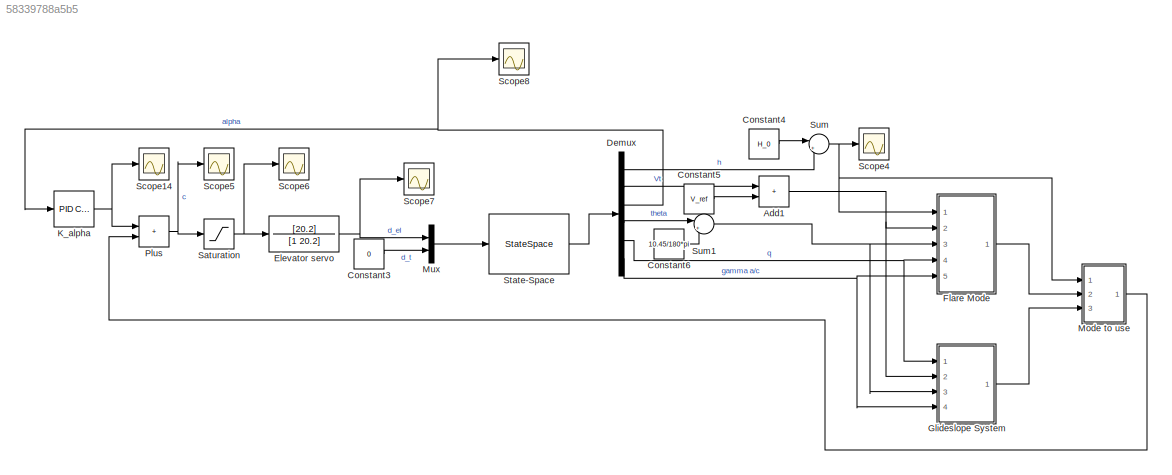
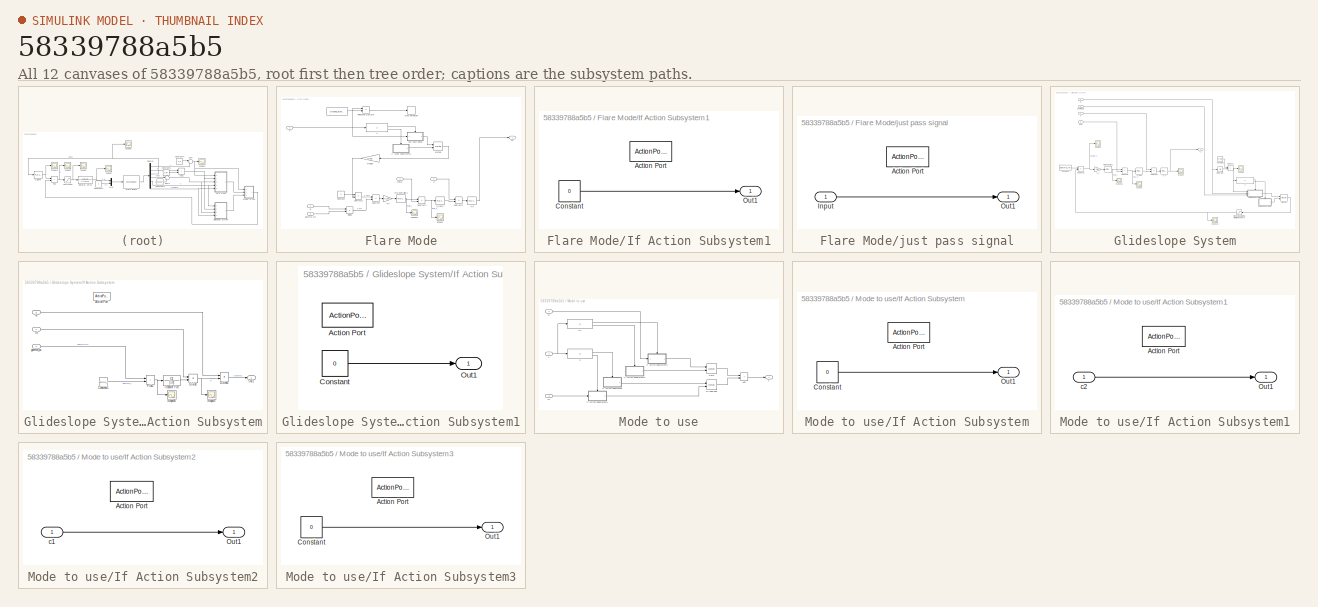
[diagram: thumbnail index - all 12 canvases of the model, root first then tree order]
MODEL slx_58339788a5b5
KIND model
CONFIG AbsTol = auto
CONFIG EnableMultiTasking = off
CONFIG FixedStep = auto
CONFIG MaxStep = auto
CONFIG MinStep = auto
CONFIG RelTol = 1e-3
CONFIG SampleTimeConstraint = Unconstrained
CONFIG Solver = VariableStepAuto
CONFIG SolverName = VariableStepAuto
CONFIG StartTime = 0.0
CONFIG StopTime = 10000
BLOCK [Sum] Add1
  IconShape = rectangular
  Ports = [2, 1]
BLOCK [Constant] Constant3
  Value = 0
BLOCK [Constant] Constant4
  Value = H_0
BLOCK [Constant] Constant5
  Value = V_ref
BLOCK [Constant] Constant6
  Value = 10.45/180*pi
BLOCK [Demux] Demux
  Outputs = 6
  Ports = [1, 6]
BLOCK [TransferFcn] Elevator servo
  Denominator = [1 20.2]
  Numerator = [20.2]
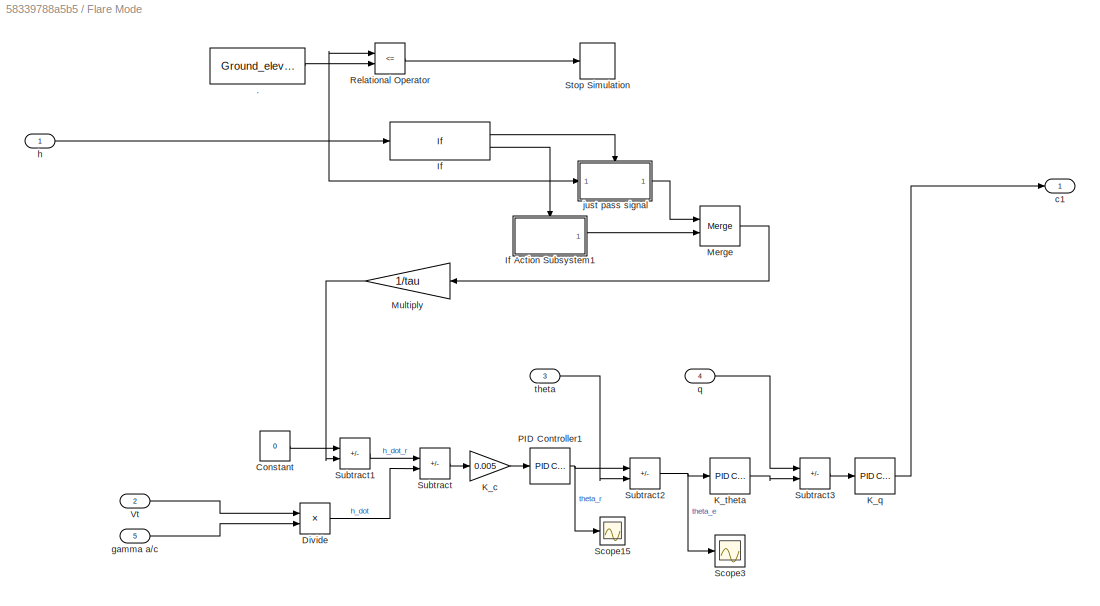
BLOCK [SubSystem] Flare Mode
  Ports = [5, 1]
  RequestExecContextInheritance = off
BLOCK [Constant] Flare Mode/.
  Value = Ground_elevation
BLOCK [Constant] Flare Mode/Constant
  Value = 0
BLOCK [Product] Flare Mode/Divide
  Inputs = **
  Ports = [2, 1]
BLOCK [If] Flare Mode/If
  IfExpression = u1 <= H_flare
  Ports = [1, 2]
BLOCK [SubSystem] Flare Mode/If Action Subsystem1
  Ports = [0, 1, 0, 0, 0, 0, 0, 1]
  RequestExecContextInheritance = off
  TreatAsAtomicUnit = on
BLOCK [ActionPort] Flare Mode/If Action Subsystem1/Action Port
  ActionPortLabel = else
BLOCK [Constant] Flare Mode/If Action Subsystem1/Constant
  Value = 0
BLOCK [Outport] Flare Mode/If Action Subsystem1/Out1
BLOCK [Gain] Flare Mode/K_c
  Gain = 0.005
BLOCK [Reference] Flare Mode/K_q  REF=simulink/Continuous/PID Controller
  Ports = [1, 1]
  SourceBlock = simulink/Continuous/PID Controller
  SourceProductBaseCode = SL
  SourceType = PID 1dof
BLOCK [Reference] Flare Mode/K_theta  REF=simulink/Continuous/PID Controller
  Ports = [1, 1]
  SourceBlock = simulink/Continuous/PID Controller
  SourceProductBaseCode = SL
  SourceType = PID 1dof
BLOCK [Merge] Flare Mode/Merge
  Ports = [2, 1]
BLOCK [Gain] Flare Mode/Multiply
  Gain = 1/tau
BLOCK [Reference] Flare Mode/PID Controller1  REF=simulink/Continuous/PID Controller
  Ports = [1, 1]
  SourceBlock = simulink/Continuous/PID Controller
  SourceProductBaseCode = SL
  SourceType = PID 1dof
BLOCK [RelationalOperator] Flare Mode/Relational Operator
  InputSameDT = off
  Operator = <=
  OutDataTypeStr = boolean
  Ports = [2, 1]
  RndMeth = Simplest
BLOCK [Scope] Flare Mode/Scope15
  Floating = off
  NumInputPorts = 1
  Ports = [1]
  ScopeSpecificationString = Simulink.scopes.TimeScopeBlockCfg('CurrentConfiguration', extmgr.ConfigurationSet(extmgr.Configuration('Core','General UI',true),extmgr.Configuration('Core','Source UI',true),extmgr.Configuration('Sources','WiredSimulink',true,'DataLoggingVariableName','ScopeData1'),extmgr.Configuration('Visuals','Time Domain',true,'SerializedDisplays',{struct('MinYLimReal','-0.10228','MaxYLimReal','0.85007','YLab...<+1366ch>
BLOCK [Scope] Flare Mode/Scope3
  Floating = off
  NumInputPorts = 1
  Ports = [1]
  ScopeSpecificationString = Simulink.scopes.TimeScopeBlockCfg('CurrentConfiguration', extmgr.ConfigurationSet(extmgr.Configuration('Core','General UI',true),extmgr.Configuration('Core','Source UI',true),extmgr.Configuration('Sources','WiredSimulink',true,'DataLoggingVariableName','ScopeData3'),extmgr.Configuration('Visuals','Time Domain',true,'SerializedDisplays',{struct('MinYLimReal','-12545529112428.87305','MaxYLimReal','7...<+1501ch>
BLOCK [Stop] Flare Mode/Stop Simulation
BLOCK [Sum] Flare Mode/Subtract
  IconShape = rectangular
  Inputs = +-
  Ports = [2, 1]
BLOCK [Sum] Flare Mode/Subtract1
  IconShape = rectangular
  Inputs = +-
  Ports = [2, 1]
BLOCK [Sum] Flare Mode/Subtract2
  IconShape = rectangular
  Inputs = +-
  Ports = [2, 1]
BLOCK [Sum] Flare Mode/Subtract3
  IconShape = rectangular
  Inputs = -+
  Ports = [2, 1]
BLOCK [Inport] Flare Mode/Vt
  Port = 2
BLOCK [Outport] Flare Mode/c1
BLOCK [Inport] Flare Mode/gamma a//c
  Port = 5
BLOCK [Inport] Flare Mode/h
BLOCK [SubSystem] Flare Mode/just pass signal
  Ports = [1, 1, 0, 0, 0, 0, 0, 1]
  RequestExecContextInheritance = off
  TreatAsAtomicUnit = on
BLOCK [ActionPort] Flare Mode/just pass signal/Action Port
  ActionPortLabel = if(u1 <= H_flare)
BLOCK [Inport] Flare Mode/just pass signal/Input
BLOCK [Outport] Flare Mode/just pass signal/Out1
BLOCK [Inport] Flare Mode/q
  Port = 4
BLOCK [Inport] Flare Mode/theta
  Port = 3
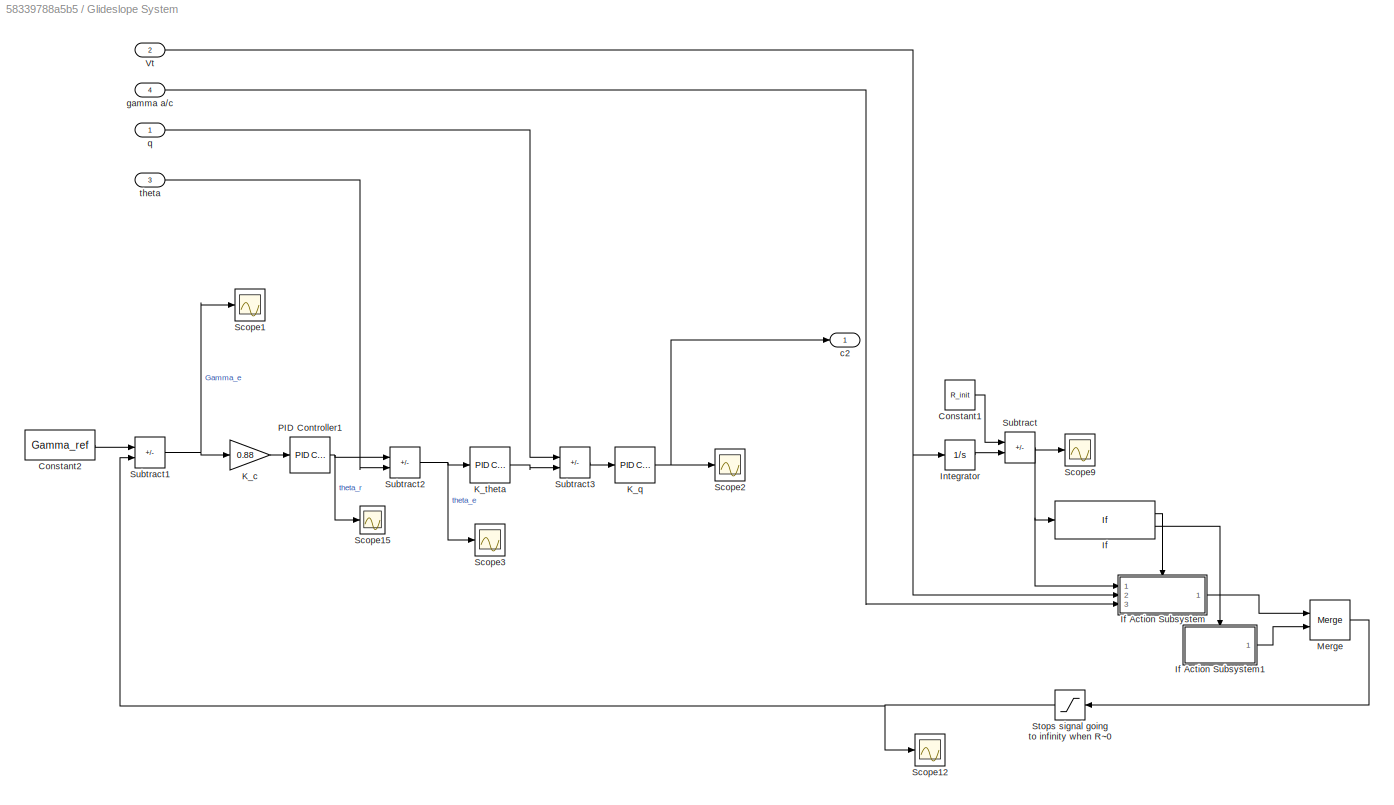
BLOCK [SubSystem] Glideslope System
  Ports = [4, 1]
  RequestExecContextInheritance = off
BLOCK [Constant] Glideslope System/Constant1
  Value = R_init
BLOCK [Constant] Glideslope System/Constant2
  Value = Gamma_ref
BLOCK [If] Glideslope System/If
  IfExpression = u1 <= 38215
  Ports = [1, 2]
BLOCK [SubSystem] Glideslope System/If Action Subsystem
  Ports = [3, 1, 0, 0, 0, 0, 0, 1]
  RequestExecContextInheritance = off
  TreatAsAtomicUnit = on
BLOCK [ActionPort] Glideslope System/If Action Subsystem/Action Port
  ActionPortLabel = if(u1 <= 38215)
BLOCK [Constant] Glideslope System/If Action Subsystem/Constant1
  Value = gamma_r
BLOCK [Product] Glideslope System/If Action Subsystem/Divide
  Inputs = **
  Ports = [2, 1]
BLOCK [Product] Glideslope System/If Action Subsystem/Divide1
  Inputs = /*
  Ports = [2, 1]
BLOCK [Outport] Glideslope System/If Action Subsystem/Out1
BLOCK [Sum] Glideslope System/If Action Subsystem/Plus1
  IconShape = rectangular
  Ports = [2, 1]
BLOCK [Inport] Glideslope System/If Action Subsystem/R
BLOCK [Scope] Glideslope System/If Action Subsystem/Scope16
  Floating = off
  NumInputPorts = 1
  Ports = [1]
  ScopeSpecificationString = Simulink.scopes.TimeScopeBlockCfg('CurrentConfiguration', extmgr.ConfigurationSet(extmgr.Configuration('Core','General UI',true),extmgr.Configuration('Core','Source UI',true),extmgr.Configuration('Sources','WiredSimulink',true,'DataLoggingVariableName','ScopeData1'),extmgr.Configuration('Visuals','Time Domain',true,'SerializedDisplays',{struct('MinYLimReal','0.00671','MaxYLimReal','0.07098','YLabe...<+1362ch>
BLOCK [Scope] Glideslope System/If Action Subsystem/Scope17
  Floating = off
  NumInputPorts = 1
  Ports = [1]
  ScopeSpecificationString = Simulink.scopes.TimeScopeBlockCfg('CurrentConfiguration', extmgr.ConfigurationSet(extmgr.Configuration('Core','General UI',true),extmgr.Configuration('Core','Source UI',true),extmgr.Configuration('Sources','WiredSimulink',true,'DataLoggingVariableName','ScopeData2'),extmgr.Configuration('Visuals','Time Domain',true,'SerializedDisplays',{struct('MinYLimReal','-1942.16536','MaxYLimReal','17479.48822...<+1432ch>
BLOCK [TransferFcn] Glideslope System/If Action Subsystem/Transfer Fcn
  Denominator = [1 0]
BLOCK [Inport] Glideslope System/If Action Subsystem/Vt
  Port = 2
BLOCK [Inport] Glideslope System/If Action Subsystem/gamma_ac
  Port = 3
BLOCK [SubSystem] Glideslope System/If Action Subsystem1
  Ports = [0, 1, 0, 0, 0, 0, 0, 1]
  RequestExecContextInheritance = off
  TreatAsAtomicUnit = on
BLOCK [ActionPort] Glideslope System/If Action Subsystem1/Action Port
  ActionPortLabel = else
BLOCK [Constant] Glideslope System/If Action Subsystem1/Constant
  Value = 0
BLOCK [Outport] Glideslope System/If Action Subsystem1/Out1
BLOCK [Integrator] Glideslope System/Integrator
  Ports = [1, 1]
BLOCK [Gain] Glideslope System/K_c
  Gain = 0.88
BLOCK [Reference] Glideslope System/K_q  REF=simulink/Continuous/PID Controller
  Ports = [1, 1]
  SourceBlock = simulink/Continuous/PID Controller
  SourceProductBaseCode = SL
  SourceType = PID 1dof
BLOCK [Reference] Glideslope System/K_theta  REF=simulink/Continuous/PID Controller
  Ports = [1, 1]
  SourceBlock = simulink/Continuous/PID Controller
  SourceProductBaseCode = SL
  SourceType = PID 1dof
BLOCK [Merge] Glideslope System/Merge
  Ports = [2, 1]
BLOCK [Reference] Glideslope System/PID Controller1  REF=simulink/Continuous/PID Controller
  Ports = [1, 1]
  SourceBlock = simulink/Continuous/PID Controller
  SourceProductBaseCode = SL
  SourceType = PID 1dof
BLOCK [Scope] Glideslope System/Scope1
  Floating = off
  NumInputPorts = 1
  Ports = [1]
  ScopeSpecificationString = Simulink.scopes.TimeScopeBlockCfg('CurrentConfiguration', extmgr.ConfigurationSet(extmgr.Configuration('Core','General UI',true),extmgr.Configuration('Core','Source UI',true),extmgr.Configuration('Sources','WiredSimulink',true,'DataLoggingVariableName','ScopeData1'),extmgr.Configuration('Visuals','Time Domain',true,'SerializedDisplays',{struct('MinYLimReal','-0.10034','MaxYLimReal','0.08948','YLab...<+1443ch>
BLOCK [Scope] Glideslope System/Scope12
  Floating = off
  NumInputPorts = 1
  Ports = [1]
  ScopeSpecificationString = Simulink.scopes.TimeScopeBlockCfg('CurrentConfiguration', extmgr.ConfigurationSet(extmgr.Configuration('Core','General UI',true),extmgr.Configuration('Core','Source UI',true),extmgr.Configuration('Sources','WiredSimulink',true,'DataLoggingVariableName','ScopeData1'),extmgr.Configuration('Visuals','Time Domain',true,'SerializedDisplays',{struct('MinYLimReal','-0.39198','MaxYLimReal','0.5','YLabelRe...<+1459ch>
BLOCK [Scope] Glideslope System/Scope15
  Floating = off
  NumInputPorts = 1
  Ports = [1]
  ScopeSpecificationString = Simulink.scopes.TimeScopeBlockCfg('CurrentConfiguration', extmgr.ConfigurationSet(extmgr.Configuration('Core','General UI',true),extmgr.Configuration('Core','Source UI',true),extmgr.Configuration('Sources','WiredSimulink',true,'DataLoggingVariableName','ScopeData4'),extmgr.Configuration('Visuals','Time Domain',true,'SerializedDisplays',{struct('MinYLimReal','-3.49717','MaxYLimReal','13.34106','YLa...<+1401ch>
BLOCK [Scope] Glideslope System/Scope2
  Floating = off
  NumInputPorts = 1
  Ports = [1]
  ScopeSpecificationString = Simulink.scopes.TimeScopeBlockCfg('CurrentConfiguration', extmgr.ConfigurationSet(extmgr.Configuration('Core','General UI',true),extmgr.Configuration('Core','Source UI',true),extmgr.Configuration('Sources','WiredSimulink',true,'DataLoggingVariableName','ScopeData1'),extmgr.Configuration('Visuals','Time Domain',true,'SerializedDisplays',{struct('MinYLimReal','-0.0738','MaxYLimReal','0.86609','YLabe...<+1438ch>
BLOCK [Scope] Glideslope System/Scope3
  Floating = off
  NumInputPorts = 1
  Ports = [1]
  ScopeSpecificationString = Simulink.scopes.TimeScopeBlockCfg('CurrentConfiguration', extmgr.ConfigurationSet(extmgr.Configuration('Core','General UI',true),extmgr.Configuration('Core','Source UI',true),extmgr.Configuration('Sources','WiredSimulink',true,'DataLoggingVariableName','ScopeData3'),extmgr.Configuration('Visuals','Time Domain',true,'SerializedDisplays',{struct('MinYLimReal','-3.67611','MaxYLimReal','13.20938','YLa...<+1404ch>
BLOCK [Scope] Glideslope System/Scope9
  Floating = off
  NumInputPorts = 1
  Ports = [1]
  ScopeSpecificationString = Simulink.scopes.TimeScopeBlockCfg('CurrentConfiguration', extmgr.ConfigurationSet(extmgr.Configuration('Core','General UI',true),extmgr.Configuration('Core','Source UI',true),extmgr.Configuration('Sources','WiredSimulink',true,'DataLoggingVariableName','ScopeData9'),extmgr.Configuration('Visuals','Time Domain',true,'SerializedDisplays',{struct('MinYLimReal','31514.34823','MaxYLimReal','43165.07242...<+1431ch>
BLOCK [Saturate] Glideslope System/Stops signal going to infinity when R~0
BLOCK [Sum] Glideslope System/Subtract
  IconShape = rectangular
  Inputs = +-
  Ports = [2, 1]
BLOCK [Sum] Glideslope System/Subtract1
  IconShape = rectangular
  Inputs = +-
  Ports = [2, 1]
BLOCK [Sum] Glideslope System/Subtract2
  IconShape = rectangular
  Inputs = +-
  Ports = [2, 1]
BLOCK [Sum] Glideslope System/Subtract3
  IconShape = rectangular
  Inputs = -+
  Ports = [2, 1]
BLOCK [Inport] Glideslope System/Vt
  Port = 2
BLOCK [Outport] Glideslope System/c2
BLOCK [Inport] Glideslope System/gamma a//c
  Port = 4
BLOCK [Inport] Glideslope System/q
BLOCK [Inport] Glideslope System/theta
  Port = 3
BLOCK [Reference] K_alpha  REF=simulink/Continuous/PID Controller
  Ports = [1, 1]
  SourceBlock = simulink/Continuous/PID Controller
  SourceProductBaseCode = SL
  SourceType = PID 1dof
BLOCK [SubSystem] Mode to use
  Ports = [3, 1]
  RequestExecContextInheritance = off
BLOCK [Sum] Mode to use/Add
  IconShape = rectangular
  Ports = [2, 1]
BLOCK [Merge] Mode to use/Flare
  Ports = [2, 1]
BLOCK [Merge] Mode to use/Glideslope
  Ports = [2, 1]
BLOCK [If] Mode to use/If
  IfExpression = u1 <= H_flare
  Ports = [1, 2]
BLOCK [SubSystem] Mode to use/If Action Subsystem
  Ports = [0, 1, 0, 0, 0, 0, 0, 1]
  RequestExecContextInheritance = off
  TreatAsAtomicUnit = on
BLOCK [ActionPort] Mode to use/If Action Subsystem/Action Port
  ActionPortLabel = if(u1 <= H_flare)
BLOCK [Constant] Mode to use/If Action Subsystem/Constant
  Value = 0
BLOCK [Outport] Mode to use/If Action Subsystem/Out1
BLOCK [SubSystem] Mode to use/If Action Subsystem1
  Ports = [1, 1, 0, 0, 0, 0, 0, 1]
  RequestExecContextInheritance = off
  TreatAsAtomicUnit = on
BLOCK [ActionPort] Mode to use/If Action Subsystem1/Action Port
  ActionPortLabel = else
BLOCK [Outport] Mode to use/If Action Subsystem1/Out1
BLOCK [Inport] Mode to use/If Action Subsystem1/c2
BLOCK [SubSystem] Mode to use/If Action Subsystem2
  Ports = [1, 1, 0, 0, 0, 0, 0, 1]
  RequestExecContextInheritance = off
  TreatAsAtomicUnit = on
BLOCK [ActionPort] Mode to use/If Action Subsystem2/Action Port
  ActionPortLabel = if(u1 <= H_flare)
BLOCK [Outport] Mode to use/If Action Subsystem2/Out1
BLOCK [Inport] Mode to use/If Action Subsystem2/c1
BLOCK [SubSystem] Mode to use/If Action Subsystem3
  Ports = [0, 1, 0, 0, 0, 0, 0, 1]
  RequestExecContextInheritance = off
  TreatAsAtomicUnit = on
BLOCK [ActionPort] Mode to use/If Action Subsystem3/Action Port
  ActionPortLabel = else
BLOCK [Constant] Mode to use/If Action Subsystem3/Constant
  Value = 0
BLOCK [Outport] Mode to use/If Action Subsystem3/Out1
BLOCK [If] Mode to use/If1
  IfExpression = u1 <= H_flare
  Ports = [1, 2]
BLOCK [Outport] Mode to use/c
BLOCK [Inport] Mode to use/c1
  Port = 2
BLOCK [Inport] Mode to use/c2
  Port = 3
BLOCK [Inport] Mode to use/h
BLOCK [Mux] Mux
  DisplayOption = bar
  Inputs = 2
  Ports = [2, 1]
BLOCK [Sum] Plus
  IconShape = rectangular
  Ports = [2, 1]
BLOCK [Saturate] Saturation
  LowerLimit = (-25-Initial_elevator)/180*pi
  UpperLimit = (25-Initial_elevator)/180*pi
BLOCK [Scope] Scope14
  Floating = off
  NumInputPorts = 1
  Ports = [1]
  ScopeSpecificationString = Simulink.scopes.TimeScopeBlockCfg('CurrentConfiguration', extmgr.ConfigurationSet(extmgr.Configuration('Core','General UI',true),extmgr.Configuration('Core','Source UI',true),extmgr.Configuration('Sources','WiredSimulink',true,'DataLoggingVariableName','ScopeData3'),extmgr.Configuration('Visuals','Time Domain',true,'SerializedDisplays',{struct('MinYLimReal','-0.35223','MaxYLimReal','3.17007','YLab...<+1400ch>
BLOCK [Scope] Scope4
  Floating = off
  NumInputPorts = 1
  Ports = [1]
  ScopeSpecificationString = Simulink.scopes.TimeScopeBlockCfg('CurrentConfiguration', extmgr.ConfigurationSet(extmgr.Configuration('Core','General UI',true),extmgr.Configuration('Core','Source UI',true),extmgr.Configuration('Sources','WiredSimulink',true,'DataLoggingVariableName','ScopeData4'),extmgr.Configuration('Visuals','Time Domain',true,'SerializedDisplays',{struct('MinYLimReal','2746.26278','MaxYLimReal','5283.63499',...<+1465ch>
BLOCK [Scope] Scope5
  Floating = off
  NumInputPorts = 1
  Ports = [1]
  ScopeSpecificationString = Simulink.scopes.TimeScopeBlockCfg('CurrentConfiguration', extmgr.ConfigurationSet(extmgr.Configuration('Core','General UI',true),extmgr.Configuration('Core','Source UI',true),extmgr.Configuration('Sources','WiredSimulink',true,'DataLoggingVariableName','ScopeData5'),extmgr.Configuration('Visuals','Time Domain',true,'SerializedDisplays',{struct('MinYLimReal','-0.01819','MaxYLimReal','0.04981','YLab...<+1439ch>
BLOCK [Scope] Scope6
  Floating = off
  NumInputPorts = 1
  Ports = [1]
  ScopeSpecificationString = Simulink.scopes.TimeScopeBlockCfg('CurrentConfiguration', extmgr.ConfigurationSet(extmgr.Configuration('Core','General UI',true),extmgr.Configuration('Core','Source UI',true),extmgr.Configuration('Sources','WiredSimulink',true,'DataLoggingVariableName','ScopeData6'),extmgr.Configuration('Visuals','Time Domain',true,'SerializedDisplays',{struct('MinYLimReal','-0.4723','MaxYLimReal','0.61853','YLabe...<+1401ch>
BLOCK [Scope] Scope7
  Floating = off
  NumInputPorts = 1
  Ports = [1]
  ScopeSpecificationString = Simulink.scopes.TimeScopeBlockCfg('CurrentConfiguration', extmgr.ConfigurationSet(extmgr.Configuration('Core','General UI',true),extmgr.Configuration('Core','Source UI',true),extmgr.Configuration('Sources','WiredSimulink',true,'DataLoggingVariableName','ScopeData7'),extmgr.Configuration('Visuals','Time Domain',true,'SerializedDisplays',{struct('MinYLimReal','-0.47232','MaxYLimReal','0.61898','YLab...<+1398ch>
BLOCK [Scope] Scope8
  Floating = off
  NumInputPorts = 1
  Ports = [1]
  ScopeSpecificationString = Simulink.scopes.TimeScopeBlockCfg('CurrentConfiguration', extmgr.ConfigurationSet(extmgr.Configuration('Core','General UI',true),extmgr.Configuration('Core','Source UI',true),extmgr.Configuration('Sources','WiredSimulink',true,'DataLoggingVariableName','ScopeData8'),extmgr.Configuration('Visuals','Time Domain',true,'SerializedDisplays',{struct('MinYLimReal','-0.01129','MaxYLimReal','0.03389','YLab...<+1364ch>
BLOCK [StateSpace] State-Space
  A = [0 0 -300 300 0; 0.0001317 -0.0291 2.13 -32.17 -2.895; 3.154e-06 -0.000697 -0.5447 4.55e-13 0.9152; 0 0 0 0 1; -4.699e-21 1.038e-18 0.3303 0 -0.8169]
  B = [0 0; -0.004534 0.001544; -0.001116 -9.493e-07; 0 0 ; -0.05702 0]
  C = [1 0 0 0 0; 0 1 0 0 0; 0 0 1 0 0; 0 0 0 1 0; 0 0 0 0 1; 0 0 -1 1 0]
  ContinuousStateAttributes = {'h', 'Vt', 'alpha', 'theta', 'q'}
  D = [0 0; 0 0; 0 0; 0 0; 0 0; 0 0]
  InitialCondition = [0; 0; 0; 0; 0]
  Ports = [1, 1]
BLOCK [Sum] Sum
  Inputs = |++
  Ports = [2, 1]
BLOCK [Sum] Sum1
  Inputs = |++
  Ports = [2, 1]
NET Add1:1 -> Flare Mode:2, Glideslope System:2
LINE Constant3:1 -> Mux:2
LINE Constant4:1 -> Sum:1
LINE Constant5:1 -> Add1:2
LINE Constant6:1 -> Sum1:2
LINE Demux:1 -> Sum:2
LINE Demux:2 -> Add1:1
NET Demux:3 -> K_alpha:1, Scope8:1
LINE Demux:4 -> Sum1:1
NET Demux:5 -> Flare Mode:4, Glideslope System:1
NET Demux:6 -> Flare Mode:5, Glideslope System:4
NET Elevator servo:1 -> Mux:1, Scope7:1
LINE Flare Mode/.:1 -> Flare Mode/Relational Operator:2
LINE Flare Mode/Constant:1 -> Flare Mode/Subtract1:1
LINE Flare Mode/Divide:1 -> Flare Mode/Subtract:2
LINE Flare Mode/If Action Subsystem1/Constant:1 -> Flare Mode/If Action Subsystem1/Out1:1
LINE Flare Mode/If Action Subsystem1:1 -> Flare Mode/Merge:2
LINE Flare Mode/If:1 -> Flare Mode/just pass signal:ifaction
LINE Flare Mode/If:2 -> Flare Mode/If Action Subsystem1:ifaction
LINE Flare Mode/K_c:1 -> Flare Mode/PID Controller1:1
LINE Flare Mode/K_q:1 -> Flare Mode/c1:1
LINE Flare Mode/K_theta:1 -> Flare Mode/Subtract3:2
LINE Flare Mode/Merge:1 -> Flare Mode/Multiply:1
LINE Flare Mode/Multiply:1 -> Flare Mode/Subtract1:2
NET Flare Mode/PID Controller1:1 -> Flare Mode/Scope15:1, Flare Mode/Subtract2:1
LINE Flare Mode/Relational Operator:1 -> Flare Mode/Stop Simulation:1
LINE Flare Mode/Subtract1:1 -> Flare Mode/Subtract:1
NET Flare Mode/Subtract2:1 -> Flare Mode/K_theta:1, Flare Mode/Scope3:1
LINE Flare Mode/Subtract3:1 -> Flare Mode/K_q:1
LINE Flare Mode/Subtract:1 -> Flare Mode/K_c:1
LINE Flare Mode/Vt:1 -> Flare Mode/Divide:1
LINE Flare Mode/gamma a//c:1 -> Flare Mode/Divide:2
NET Flare Mode/h:1 -> Flare Mode/If:1, Flare Mode/Relational Operator:1, Flare Mode/just pass signal:1
LINE Flare Mode/just pass signal/Input:1 -> Flare Mode/just pass signal/Out1:1
LINE Flare Mode/just pass signal:1 -> Flare Mode/Merge:1
LINE Flare Mode/q:1 -> Flare Mode/Subtract3:1
LINE Flare Mode/theta:1 -> Flare Mode/Subtract2:2
LINE Flare Mode:1 -> Mode to use:2
LINE Glideslope System/Constant1:1 -> Glideslope System/Subtract:1
LINE Glideslope System/Constant2:1 -> Glideslope System/Subtract1:1
LINE Glideslope System/If Action Subsystem/Constant1:1 -> Glideslope System/If Action Subsystem/Plus1:2
LINE Glideslope System/If Action Subsystem/Divide1:1 -> Glideslope System/If Action Subsystem/Out1:1
NET Glideslope System/If Action Subsystem/Divide:1 -> Glideslope System/If Action Subsystem/Divide1:2, Glideslope System/If Action Subsystem/Scope17:1
NET Glideslope System/If Action Subsystem/Plus1:1 -> Glideslope System/If Action Subsystem/Scope16:1, Glideslope System/If Action Subsystem/Transfer Fcn:1
LINE Glideslope System/If Action Subsystem/R:1 -> Glideslope System/If Action Subsystem/Divide1:1
LINE Glideslope System/If Action Subsystem/Transfer Fcn:1 -> Glideslope System/If Action Subsystem/Divide:2
LINE Glideslope System/If Action Subsystem/Vt:1 -> Glideslope System/If Action Subsystem/Divide:1
LINE Glideslope System/If Action Subsystem/gamma_ac:1 -> Glideslope System/If Action Subsystem/Plus1:1
LINE Glideslope System/If Action Subsystem1/Constant:1 -> Glideslope System/If Action Subsystem1/Out1:1
LINE Glideslope System/If Action Subsystem1:1 -> Glideslope System/Merge:2
LINE Glideslope System/If Action Subsystem:1 -> Glideslope System/Merge:1
LINE Glideslope System/If:1 -> Glideslope System/If Action Subsystem:ifaction
LINE Glideslope System/If:2 -> Glideslope System/If Action Subsystem1:ifaction
LINE Glideslope System/Integrator:1 -> Glideslope System/Subtract:2
LINE Glideslope System/K_c:1 -> Glideslope System/PID Controller1:1
NET Glideslope System/K_q:1 -> Glideslope System/Scope2:1, Glideslope System/c2:1
LINE Glideslope System/K_theta:1 -> Glideslope System/Subtract3:2
LINE Glideslope System/Merge:1 -> Glideslope System/Stops signal going to infinity when R~0:1
NET Glideslope System/PID Controller1:1 -> Glideslope System/Scope15:1, Glideslope System/Subtract2:1
NET Glideslope System/Stops signal going to infinity when R~0:1 -> Glideslope System/Scope12:1, Glideslope System/Subtract1:2
NET Glideslope System/Subtract1:1 -> Glideslope System/K_c:1, Glideslope System/Scope1:1
NET Glideslope System/Subtract2:1 -> Glideslope System/K_theta:1, Glideslope System/Scope3:1
LINE Glideslope System/Subtract3:1 -> Glideslope System/K_q:1
NET Glideslope System/Subtract:1 -> Glideslope System/If Action Subsystem:1, Glideslope System/If:1, Glideslope System/Scope9:1
NET Glideslope System/Vt:1 -> Glideslope System/If Action Subsystem:2, Glideslope System/Integrator:1
LINE Glideslope System/gamma a//c:1 -> Glideslope System/If Action Subsystem:3
LINE Glideslope System/q:1 -> Glideslope System/Subtract3:1
LINE Glideslope System/theta:1 -> Glideslope System/Subtract2:2
LINE Glideslope System:1 -> Mode to use:3
NET K_alpha:1 -> Plus:1, Scope14:1
LINE Mode to use/Add:1 -> Mode to use/c:1
LINE Mode to use/Flare:1 -> Mode to use/Add:1
LINE Mode to use/Glideslope:1 -> Mode to use/Add:2
LINE Mode to use/If Action Subsystem/Constant:1 -> Mode to use/If Action Subsystem/Out1:1
LINE Mode to use/If Action Subsystem1/c2:1 -> Mode to use/If Action Subsystem1/Out1:1
LINE Mode to use/If Action Subsystem1:1 -> Mode to use/Glideslope:2
LINE Mode to use/If Action Subsystem2/c1:1 -> Mode to use/If Action Subsystem2/Out1:1
LINE Mode to use/If Action Subsystem2:1 -> Mode to use/Flare:1
LINE Mode to use/If Action Subsystem3/Constant:1 -> Mode to use/If Action Subsystem3/Out1:1
LINE Mode to use/If Action Subsystem3:1 -> Mode to use/Flare:2
LINE Mode to use/If Action Subsystem:1 -> Mode to use/Glideslope:1
LINE Mode to use/If1:1 -> Mode to use/If Action Subsystem2:ifaction
LINE Mode to use/If1:2 -> Mode to use/If Action Subsystem3:ifaction
LINE Mode to use/If:1 -> Mode to use/If Action Subsystem:ifaction
LINE Mode to use/If:2 -> Mode to use/If Action Subsystem1:ifaction
LINE Mode to use/c1:1 -> Mode to use/If Action Subsystem2:1
LINE Mode to use/c2:1 -> Mode to use/If Action Subsystem1:1
NET Mode to use/h:1 -> Mode to use/If1:1, Mode to use/If:1
LINE Mode to use:1 -> Plus:2
LINE Mux:1 -> State-Space:1
NET Plus:1 -> Saturation:1, Scope5:1
NET Saturation:1 -> Elevator servo:1, Scope6:1
LINE State-Space:1 -> Demux:1
NET Sum1:1 -> Flare Mode:3, Glideslope System:3
NET Sum:1 -> Flare Mode:1, Mode to use:1, Scope4:1
note: NET lines group one-source signal fan-out (src -> all destinations, sorted); 1:1 wires keep LINE
